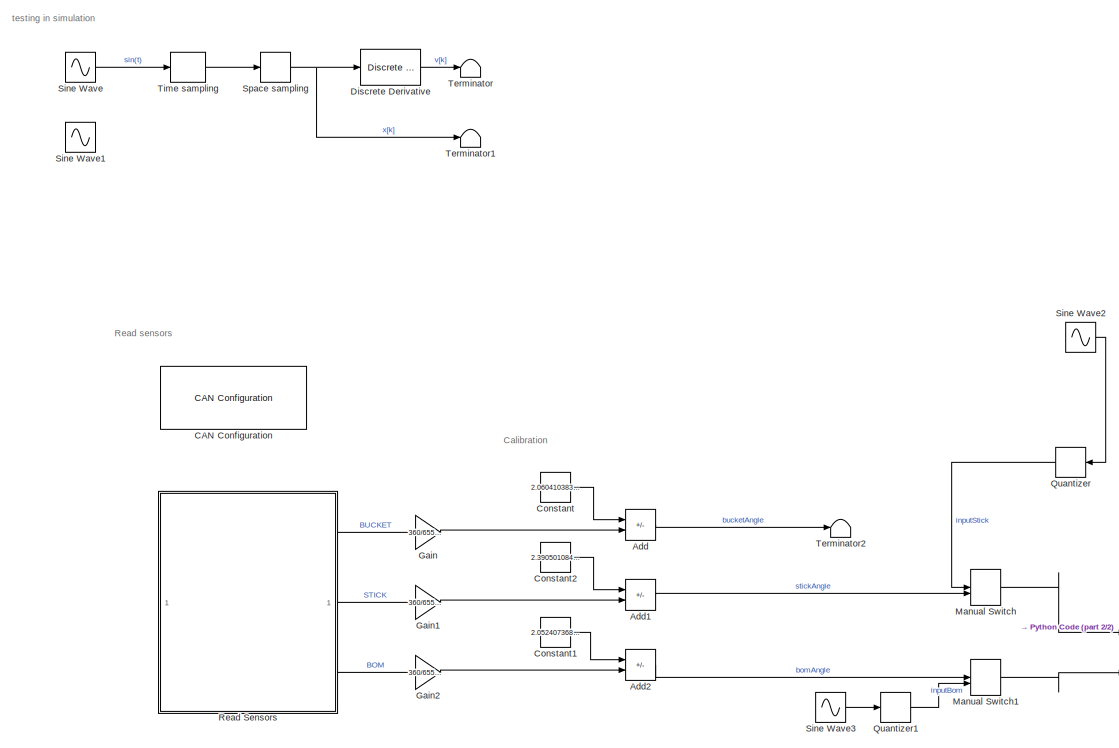
[diagram: root canvas - part 1/2, middle left region]
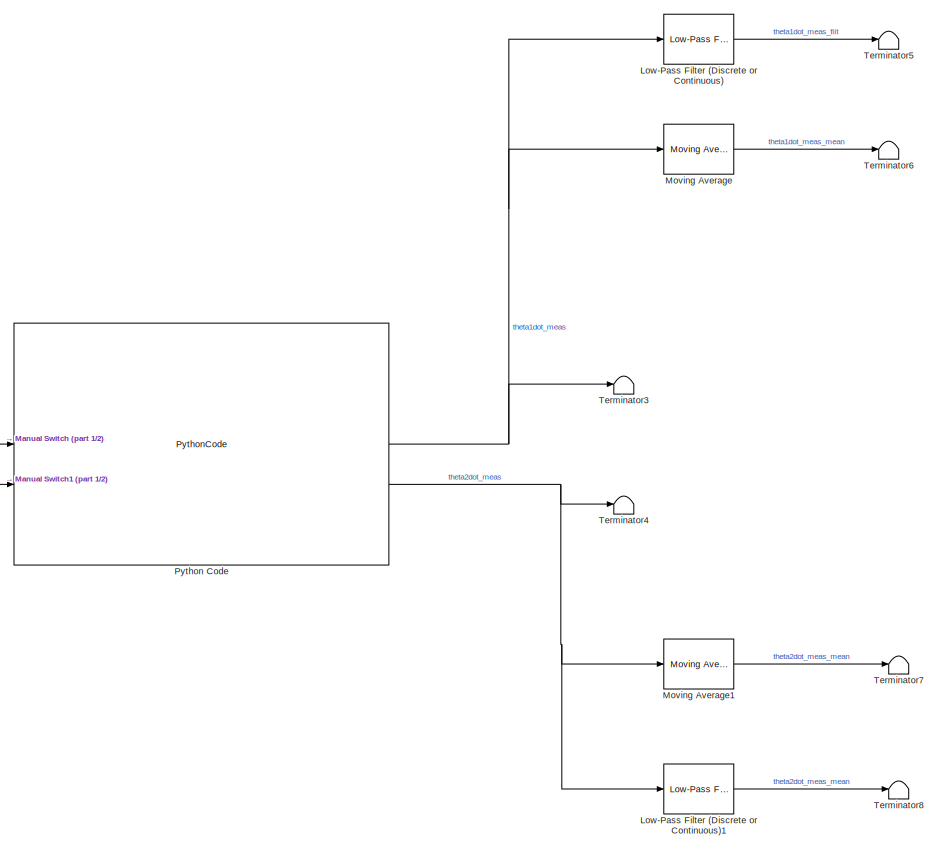
[diagram: root canvas - part 2/2, right side, full height]
MODEL slx_2342ba63c89d
KIND model
CONFIG AbsTol = auto
CONFIG EnableMultiTasking = off
CONFIG FixedStep = auto
CONFIG MaxStep = auto
CONFIG MinStep = auto
CONFIG RelTol = 1e-3
CONFIG SampleTimeConstraint = Unconstrained
CONFIG SolverName = VariableStepAuto
CONFIG StartTime = 0.0
CONFIG StopTime = 30
WORKSPACE source: MATLAB code (in-file)
WORKSPACE Ts = 0.0001
BLOCK [Sum] Add
  IconShape = rectangular
  Inputs = -+
BLOCK [Sum] Add1
  IconShape = rectangular
  Inputs = -+
BLOCK [Sum] Add2
  IconShape = rectangular
  Inputs = -+
BLOCK [Reference] CAN Configuration  REF=canlib/CAN Configuration
  SourceBlock = canlib/CAN Configuration
  SourceType = CAN Configuration
BLOCK [Constant] Constant
  Value = 2.060410383456638e+02
BLOCK [Constant] Constant1
  Value = 2.052407368979854e+02
BLOCK [Constant] Constant2
  Value = 2.390501084826040e+02
BLOCK [Reference] Discrete Derivative  REF=simulink/Discrete/Discrete Derivative
  Commented = on
  SourceBlock = simulink/Discrete/Discrete Derivative
  SourceType = Discrete Derivative
BLOCK [Gain] Gain
  Gain = 360/65535
BLOCK [Gain] Gain1
  Gain = 360/65535
BLOCK [Gain] Gain2
  Gain = 360/65535
BLOCK [Reference] Low-Pass Filter (Discrete or Continuous)  REF=eeGeneralControl/Low-Pass Filter
(Discrete or Continuous)
  LibrarySourceBlock = ee_sl_lib/General Control/Low-Pass Filter\n(Discrete or Continuous)
  SourceBlock = eeGeneralControl/Low-Pass Filter\n(Discrete or Continuous)
  SourceType = Low-Pass Filter (Discrete or Continuous)
BLOCK [Reference] Low-Pass Filter (Discrete or Continuous)1  REF=eeGeneralControl/Low-Pass Filter
(Discrete or Continuous)
  LibrarySourceBlock = ee_sl_lib/General Control/Low-Pass Filter\n(Discrete or Continuous)
  SourceBlock = eeGeneralControl/Low-Pass Filter\n(Discrete or Continuous)
  SourceType = Low-Pass Filter (Discrete or Continuous)
BLOCK [ManualSwitch] Manual Switch
BLOCK [ManualSwitch] Manual Switch1
  CurrentSetting = 0
BLOCK [Reference] Moving Average  REF=eeGeneralControl/Moving Average
  LibrarySourceBlock = ee_sl_lib/General Control/Moving Average
  SourceBlock = eeGeneralControl/Moving Average
  SourceType = Moving Average
BLOCK [Reference] Moving Average1  REF=eeGeneralControl/Moving Average
  LibrarySourceBlock = ee_sl_lib/General Control/Moving Average
  SourceBlock = eeGeneralControl/Moving Average
  SourceType = Moving Average
BLOCK [PythonCode] Python Code
  DT = Ts
  OutputCode = #code for testing how the numerical derivation is affected by sampling time etc.\n#change sampling time to see how the derivated output is affected\n\n\nif theta1_prev is None:\n    theta1_prev = 0.0\nif theta2_prev is None:\n    theta2_prev = 0.0\n\n#raw derivative calculation\n#DT is a parameter\ntheta1dot_meas = (theta1 - theta1_prev) / DT\ntheta2dot_meas = (theta2 - theta2_prev) / DT\n\ntheta1_prev = theta1...<+21ch>
  SampleTime = Ts
BLOCK [Quantizer] Quantizer
  QuantizationInterval = 2*pi/(2^16-1)
BLOCK [Quantizer] Quantizer1
  QuantizationInterval = 2*pi/(2^16-1)
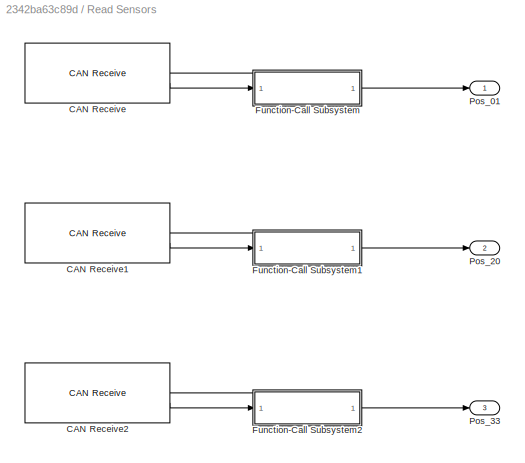
BLOCK [SubSystem] Read Sensors
BLOCK [Reference] Read Sensors/CAN Receive  REF=canlib/CAN Receive
  SourceBlock = canlib/CAN Receive
  SourceType = CAN Receive
BLOCK [Reference] Read Sensors/CAN Receive1  REF=canlib/CAN Receive
  SourceBlock = canlib/CAN Receive
  SourceType = CAN Receive
BLOCK [Reference] Read Sensors/CAN Receive2  REF=canlib/CAN Receive
  SourceBlock = canlib/CAN Receive
  SourceType = CAN Receive
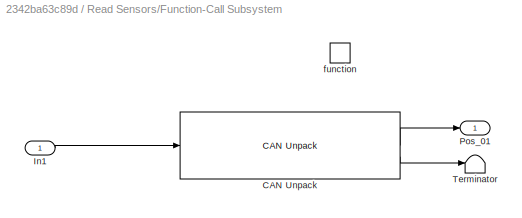
BLOCK [SubSystem] Read Sensors/Function-Call Subsystem
  TreatAsAtomicUnit = on
BLOCK [Reference] Read Sensors/Function-Call Subsystem/CAN Unpack  REF=canmsglib/CAN Unpack
  LibrarySourceBlock = canlib/CAN Unpack
  SourceBlock = canmsglib/CAN Unpack
  SourceType = CAN Unpack
BLOCK [Inport] Read Sensors/Function-Call Subsystem/In1
BLOCK [Outport] Read Sensors/Function-Call Subsystem/Pos_01
BLOCK [Terminator] Read Sensors/Function-Call Subsystem/Terminator
BLOCK [TriggerPort] Read Sensors/Function-Call Subsystem/function
  StatesWhenEnabling = held
  TriggerType = function-call
  VariantControl = (inherit)
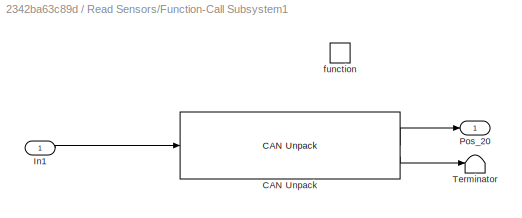
BLOCK [SubSystem] Read Sensors/Function-Call Subsystem1
  TreatAsAtomicUnit = on
BLOCK [Reference] Read Sensors/Function-Call Subsystem1/CAN Unpack  REF=canmsglib/CAN Unpack
  LibrarySourceBlock = canlib/CAN Unpack
  SourceBlock = canmsglib/CAN Unpack
  SourceType = CAN Unpack
BLOCK [Inport] Read Sensors/Function-Call Subsystem1/In1
BLOCK [Outport] Read Sensors/Function-Call Subsystem1/Pos_20
BLOCK [Terminator] Read Sensors/Function-Call Subsystem1/Terminator
BLOCK [TriggerPort] Read Sensors/Function-Call Subsystem1/function
  StatesWhenEnabling = held
  TriggerType = function-call
  VariantControl = (inherit)
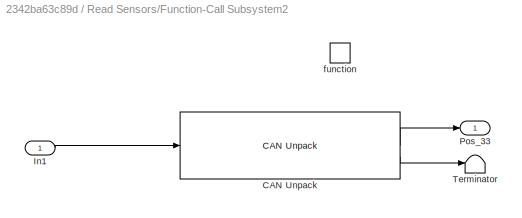
BLOCK [SubSystem] Read Sensors/Function-Call Subsystem2
  TreatAsAtomicUnit = on
BLOCK [Reference] Read Sensors/Function-Call Subsystem2/CAN Unpack  REF=canmsglib/CAN Unpack
  LibrarySourceBlock = canlib/CAN Unpack
  SourceBlock = canmsglib/CAN Unpack
  SourceType = CAN Unpack
BLOCK [Inport] Read Sensors/Function-Call Subsystem2/In1
BLOCK [Outport] Read Sensors/Function-Call Subsystem2/Pos_33
BLOCK [Terminator] Read Sensors/Function-Call Subsystem2/Terminator
BLOCK [TriggerPort] Read Sensors/Function-Call Subsystem2/function
  StatesWhenEnabling = held
  TriggerType = function-call
  VariantControl = (inherit)
BLOCK [Outport] Read Sensors/Pos_01
BLOCK [Outport] Read Sensors/Pos_20
  Port = 2
BLOCK [Outport] Read Sensors/Pos_33
  Port = 3
BLOCK [Sin] Sine Wave
  Commented = on
  SampleTime = 0
BLOCK [Sin] Sine Wave1
  Commented = on
  Phase = pi/2
  SampleTime = 0
BLOCK [Sin] Sine Wave2
  SampleTime = 0
BLOCK [Sin] Sine Wave3
  Phase = pi/2
  SampleTime = 0
BLOCK [Quantizer] Space sampling
  Commented = on
  QuantizationInterval = 2*pi/(2^15-1)
BLOCK [Terminator] Terminator
  Commented = on
BLOCK [Terminator] Terminator1
  Commented = on
BLOCK [Terminator] Terminator2
BLOCK [Terminator] Terminator3
BLOCK [Terminator] Terminator4
BLOCK [Terminator] Terminator5
BLOCK [Terminator] Terminator6
BLOCK [Terminator] Terminator7
BLOCK [Terminator] Terminator8
BLOCK [ZeroOrderHold] Time sampling
  Commented = on
  SampleTime = 1e-2
ANNOTATION (root): Calibration
ANNOTATION (root): Read sensors
ANNOTATION (root): testing in simulation
LINE Add1:1 -> Manual Switch:2
LINE Add2:1 -> Manual Switch1:1
LINE Add:1 -> Terminator2:1
LINE Constant1:1 -> Add2:1
LINE Constant2:1 -> Add1:1
LINE Constant:1 -> Add:1
LINE Discrete Derivative:1 -> Terminator:1
LINE Gain1:1 -> Add1:2
LINE Gain2:1 -> Add2:2
LINE Gain:1 -> Add:2
LINE Low-Pass Filter (Discrete or Continuous)1:1 -> Terminator8:1
LINE Low-Pass Filter (Discrete or Continuous):1 -> Terminator5:1
LINE Manual Switch1:1 -> Python Code:2
LINE Manual Switch:1 -> Python Code:1
LINE Moving Average1:1 -> Terminator7:1
LINE Moving Average:1 -> Terminator6:1
NET Python Code:1 -> Low-Pass Filter (Discrete or Continuous):1, Moving Average:1, Terminator3:1
NET Python Code:2 -> Low-Pass Filter (Discrete or Continuous)1:1, Moving Average1:1, Terminator4:1
LINE Quantizer1:1 -> Manual Switch1:2
LINE Quantizer:1 -> Manual Switch:1
LINE Read Sensors/CAN Receive1:1 -> Read Sensors/Function-Call Subsystem1:trigger
LINE Read Sensors/CAN Receive1:2 -> Read Sensors/Function-Call Subsystem1:1
LINE Read Sensors/CAN Receive2:1 -> Read Sensors/Function-Call Subsystem2:trigger
LINE Read Sensors/CAN Receive2:2 -> Read Sensors/Function-Call Subsystem2:1
LINE Read Sensors/CAN Receive:1 -> Read Sensors/Function-Call Subsystem:trigger
LINE Read Sensors/CAN Receive:2 -> Read Sensors/Function-Call Subsystem:1
LINE Read Sensors/Function-Call Subsystem/CAN Unpack:1 -> Read Sensors/Function-Call Subsystem/Pos_01:1
LINE Read Sensors/Function-Call Subsystem/CAN Unpack:2 -> Read Sensors/Function-Call Subsystem/Terminator:1
LINE Read Sensors/Function-Call Subsystem/In1:1 -> Read Sensors/Function-Call Subsystem/CAN Unpack:1
LINE Read Sensors/Function-Call Subsystem1/CAN Unpack:1 -> Read Sensors/Function-Call Subsystem1/Pos_20:1
LINE Read Sensors/Function-Call Subsystem1/CAN Unpack:2 -> Read Sensors/Function-Call Subsystem1/Terminator:1
LINE Read Sensors/Function-Call Subsystem1/In1:1 -> Read Sensors/Function-Call Subsystem1/CAN Unpack:1
LINE Read Sensors/Function-Call Subsystem1:1 -> Read Sensors/Pos_20:1
LINE Read Sensors/Function-Call Subsystem2/CAN Unpack:1 -> Read Sensors/Function-Call Subsystem2/Pos_33:1
LINE Read Sensors/Function-Call Subsystem2/CAN Unpack:2 -> Read Sensors/Function-Call Subsystem2/Terminator:1
LINE Read Sensors/Function-Call Subsystem2/In1:1 -> Read Sensors/Function-Call Subsystem2/CAN Unpack:1
LINE Read Sensors/Function-Call Subsystem2:1 -> Read Sensors/Pos_33:1
LINE Read Sensors/Function-Call Subsystem:1 -> Read Sensors/Pos_01:1
LINE Read Sensors:1 -> Gain:1
LINE Read Sensors:2 -> Gain1:1
LINE Read Sensors:3 -> Gain2:1
LINE Sine Wave2:1 -> Quantizer:1
LINE Sine Wave3:1 -> Quantizer1:1
LINE Sine Wave:1 -> Time sampling:1
NET Space sampling:1 -> Discrete Derivative:1, Terminator1:1
LINE Time sampling:1 -> Space sampling:1
note: NET lines group one-source signal fan-out (src -> all destinations, sorted); 1:1 wires keep LINE
